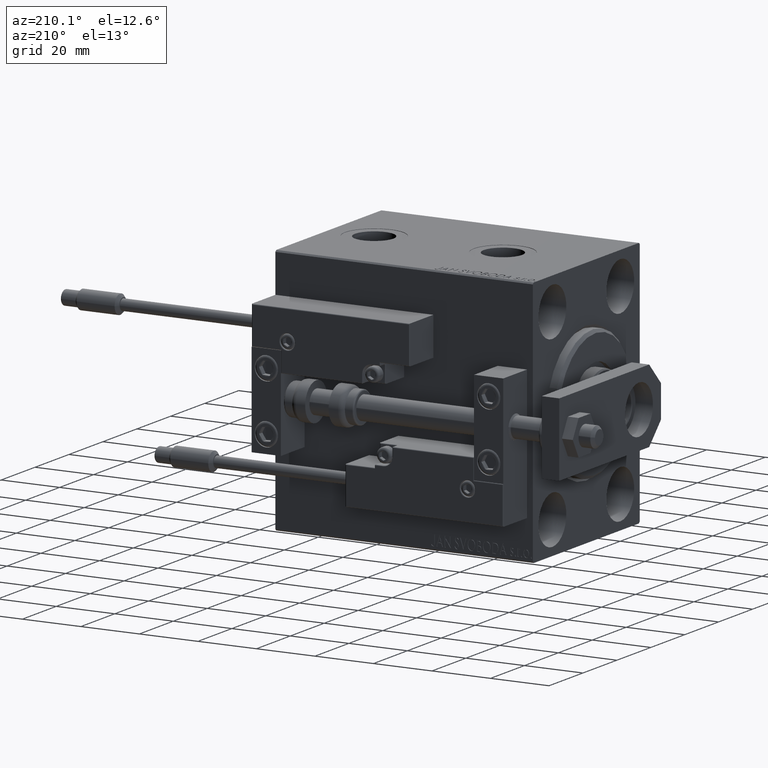
[diagram: clean part render]
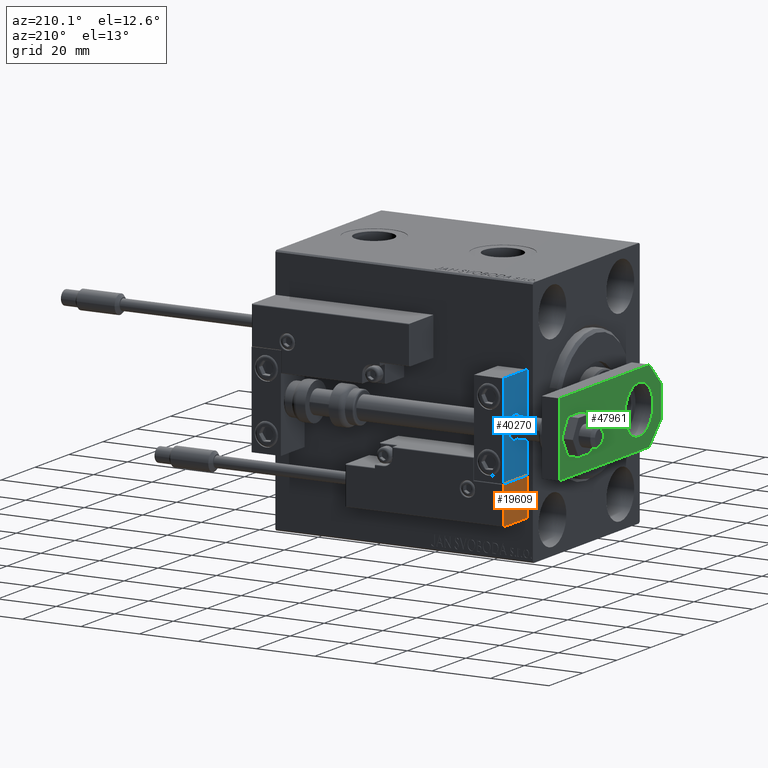
[diagram: same view with three faces highlighted in distinct colors, each labeled with its STEP entity id]
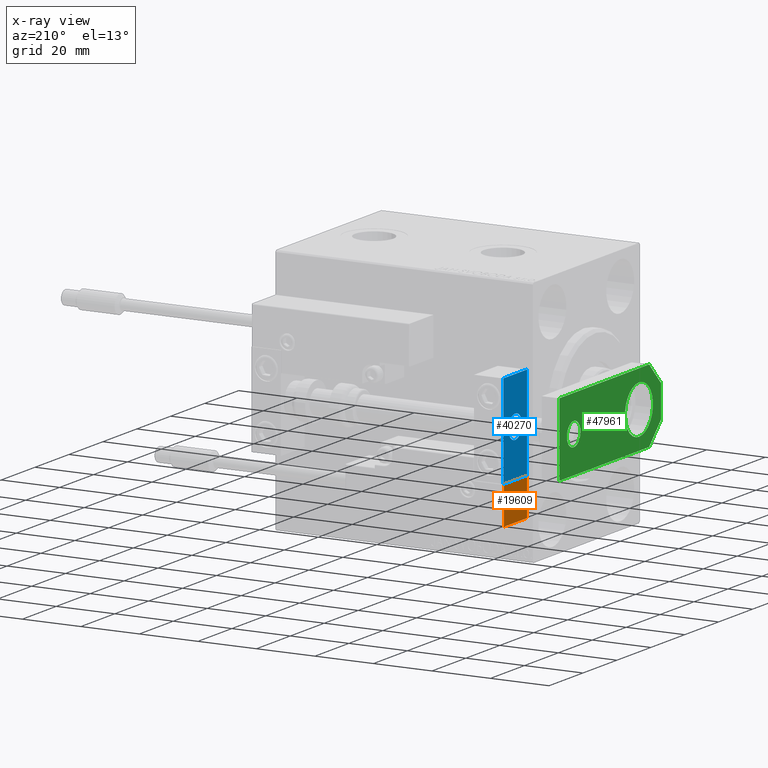
[diagram: x-ray of the same camera — body ghosted, the three highlighted faces saturated]
A machine part, auxiliary view with three faces highlighted in distinct colors.
The next image is the same camera in x-ray (body ghosted, the three faces saturated) — at least one of them is partly hidden behind the body in this view.
Their STEP definitions:

[orange] entity #19609 — the highlighted planar face has unit normal (1, 0, -0).
#1302 = CARTESIAN_POINT ( 'NONE',  ( -26.99999999999993605, 20.00000000000002132, 14.00000000000000000 ) ) ;
#3211 = LINE ( 'NONE', #23182, #13010 ) ;
#7393 = FACE_OUTER_BOUND ( 'NONE', #45682, .T. ) ;
#8990 = DIRECTION ( 'NONE',  ( -0.000000000000000000, -0.000000000000000000, -1.000000000000000000 ) ) ;
#9459 = ORIENTED_EDGE ( 'NONE', *, *, #26182, .T. ) ;
#9603 = ORIENTED_EDGE ( 'NONE', *, *, #37229, .T. ) ;
#10831 = DIRECTION ( 'NONE',  ( -8.006416042969869188E-16, -1.000000000000000000, 0.000000000000000000 ) ) ;
#12711 = VECTOR ( 'NONE', #49258, 1000.000000000000000 ) ;
#13010 = VECTOR ( 'NONE', #18581, 1000.000000000000000 ) ;
#13231 = VERTEX_POINT ( 'NONE', #31777 ) ;
#14517 = CARTESIAN_POINT ( 'NONE',  ( -26.99999999999994671, 7.000000000000005329, 0.000000000000000000 ) ) ;
#15358 = DIRECTION ( 'NONE',  ( 1.000000000000000000, -8.006416042969869188E-16, 0.000000000000000000 ) ) ;
#17249 = VECTOR ( 'NONE', #10831, 1000.000000000000000 ) ;
#18397 = VERTEX_POINT ( 'NONE', #43501 ) ;
#18581 = DIRECTION ( 'NONE',  ( -0.000000000000000000, -0.000000000000000000, -1.000000000000000000 ) ) ;
#19609 = ADVANCED_FACE ( 'NONE', ( #7393 ), #47050, .F. ) ;
#21178 = VERTEX_POINT ( 'NONE', #14517 ) ;
#23182 = CARTESIAN_POINT ( 'NONE',  ( -26.99999999999994671, 7.000000000000005329, 14.00000000000000000 ) ) ;
#26182 = EDGE_CURVE ( 'NONE', #40487, #21178, #37452, .T. ) ;
#26479 = CARTESIAN_POINT ( 'NONE',  ( -26.99999999999993605, 20.00000000000002132, 0.000000000000000000 ) ) ;
#29352 = LINE ( 'NONE', #49023, #12711 ) ;
#29524 = CARTESIAN_POINT ( 'NONE',  ( -26.99999999999993605, 20.00000000000002132, 0.000000000000000000 ) ) ;
#31211 = CARTESIAN_POINT ( 'NONE',  ( -26.99999999999993605, 20.00000000000002132, 14.00000000000000000 ) ) ;
#31441 = ORIENTED_EDGE ( 'NONE', *, *, #37616, .T. ) ;
#31777 = CARTESIAN_POINT ( 'NONE',  ( -26.99999999999994671, 7.000000000000005329, 13.70000000000000107 ) ) ;
#34092 = AXIS2_PLACEMENT_3D ( 'NONE', #31211, #15358, #35299 ) ;
#35299 = DIRECTION ( 'NONE',  ( 8.006416042969869188E-16, 1.000000000000000000, 0.000000000000000000 ) ) ;
#37229 = EDGE_CURVE ( 'NONE', #13231, #18397, #29352, .T. ) ;
#37243 = VECTOR ( 'NONE', #8990, 1000.000000000000000 ) ;
#37400 = ORIENTED_EDGE ( 'NONE', *, *, #48827, .F. ) ;
#37452 = LINE ( 'NONE', #29524, #17249 ) ;
#37616 = EDGE_CURVE ( 'NONE', #18397, #40487, #44030, .T. ) ;
#40487 = VERTEX_POINT ( 'NONE', #26479 ) ;
#43501 = CARTESIAN_POINT ( 'NONE',  ( -26.99999999999993605, 20.00000000000002132, 13.70000000000000107 ) ) ;
#44030 = LINE ( 'NONE', #1302, #37243 ) ;
#45682 = EDGE_LOOP ( 'NONE', ( #37400, #9603, #31441, #9459 ) ) ;
#47050 = PLANE ( 'NONE',  #34092 ) ;
#48827 = EDGE_CURVE ( 'NONE', #13231, #21178, #3211, .T. ) ;
#49023 = CARTESIAN_POINT ( 'NONE',  ( -26.99999999999993605, 20.00000000000002132, 13.70000000000000107 ) ) ;
#49258 = DIRECTION ( 'NONE',  ( 8.006416042969869188E-16, 1.000000000000000000, -0.000000000000000000 ) ) ;

[blue] entity #40270 — the highlighted planar face has unit normal (1, 0, -0).
#158 = CARTESIAN_POINT ( 'NONE',  ( 10.00000000000000000, 0.000000000000000000, 0.000000000000000000 ) ) ;
#1959 = CARTESIAN_POINT ( 'NONE',  ( 10.00000000000000000, 7.000000000000000000, 15.99999999999999289 ) ) ;
#2762 = DIRECTION ( 'NONE',  ( 0.000000000000000000, -1.000000000000000000, 0.000000000000000000 ) ) ;
#2831 = EDGE_CURVE ( 'NONE', #28261, #8644, #37029, .T. ) ;
#3406 = DIRECTION ( 'NONE',  ( -1.000000000000000000, 0.000000000000000000, 0.000000000000000000 ) ) ;
#4254 = FACE_OUTER_BOUND ( 'NONE', #25747, .T. ) ;
#4641 = VECTOR ( 'NONE', #2762, 1000.000000000000000 ) ;
#6920 = CARTESIAN_POINT ( 'NONE',  ( 10.00000000000000000, -7.000000000000000000, 15.99999999999999289 ) ) ;
#8038 = EDGE_CURVE ( 'NONE', #8644, #28261, #15850, .T. ) ;
#8600 = PLANE ( 'NONE',  #34761 ) ;
#8644 = VERTEX_POINT ( 'NONE', #31277 ) ;
#10763 = EDGE_CURVE ( 'NONE', #12622, #36888, #14363, .T. ) ;
#10966 = CARTESIAN_POINT ( 'NONE',  ( 10.00000000000000000, 7.000000000000000000, -16.00000000000000711 ) ) ;
#11262 = CARTESIAN_POINT ( 'NONE',  ( 10.00000000000000000, 7.000000000000000000, 15.99999999999999289 ) ) ;
#12455 = FACE_BOUND ( 'NONE', #31809, .T. ) ;
#12622 = VERTEX_POINT ( 'NONE', #11262 ) ;
#14363 = LINE ( 'NONE', #33050, #32277 ) ;
#14965 = AXIS2_PLACEMENT_3D ( 'NONE', #47056, #35058, #15861 ) ;
#15199 = DIRECTION ( 'NONE',  ( 0.000000000000000000, 0.000000000000000000, 1.000000000000000000 ) ) ;
#15850 = CIRCLE ( 'NONE', #17446, 4.000000000000000000 ) ;
#15861 = DIRECTION ( 'NONE',  ( 0.000000000000000000, 0.000000000000000000, 1.000000000000000000 ) ) ;
#17446 = AXIS2_PLACEMENT_3D ( 'NONE', #29789, #3406, #15199 ) ;
#19875 = DIRECTION ( 'NONE',  ( -0.000000000000000000, 0.000000000000000000, 1.000000000000000000 ) ) ;
#20005 = EDGE_CURVE ( 'NONE', #36888, #41069, #42428, .T. ) ;
#22053 = CARTESIAN_POINT ( 'NONE',  ( 10.00000000000000000, 0.000000000000000000, 4.000000000000000000 ) ) ;
#22734 = EDGE_CURVE ( 'NONE', #48775, #41069, #29978, .T. ) ;
#22928 = CARTESIAN_POINT ( 'NONE',  ( 10.00000000000000000, -7.000000000000000000, 15.99999999999999289 ) ) ;
#25747 = EDGE_LOOP ( 'NONE', ( #44812, #30588, #37585, #40104 ) ) ;
#27178 = VECTOR ( 'NONE', #48045, 1000.000000000000000 ) ;
#28261 = VERTEX_POINT ( 'NONE', #22053 ) ;
#29789 = CARTESIAN_POINT ( 'NONE',  ( 10.00000000000000000, 0.000000000000000000, 0.000000000000000000 ) ) ;
#29944 = EDGE_CURVE ( 'NONE', #12622, #48775, #43683, .T. ) ;
#29978 = LINE ( 'NONE', #6920, #40836 ) ;
#30222 = DIRECTION ( 'NONE',  ( 0.000000000000000000, 0.000000000000000000, -1.000000000000000000 ) ) ;
#30588 = ORIENTED_EDGE ( 'NONE', *, *, #20005, .F. ) ;
#30741 = ORIENTED_EDGE ( 'NONE', *, *, #2831, .T. ) ;
#31277 = CARTESIAN_POINT ( 'NONE',  ( 10.00000000000000000, 4.898587196589412829E-16, -4.000000000000000000 ) ) ;
#31809 = EDGE_LOOP ( 'NONE', ( #30741, #35207 ) ) ;
#32277 = VECTOR ( 'NONE', #38398, 1000.000000000000000 ) ;
#33050 = CARTESIAN_POINT ( 'NONE',  ( 10.00000000000000000, 7.000000000000000000, 15.99999999999999289 ) ) ;
#34761 = AXIS2_PLACEMENT_3D ( 'NONE', #158, #42632, #19875 ) ;
#35058 = DIRECTION ( 'NONE',  ( -1.000000000000000000, 0.000000000000000000, 0.000000000000000000 ) ) ;
#35207 = ORIENTED_EDGE ( 'NONE', *, *, #8038, .T. ) ;
#36888 = VERTEX_POINT ( 'NONE', #44486 ) ;
#37029 = CIRCLE ( 'NONE', #14965, 4.000000000000000000 ) ;
#37585 = ORIENTED_EDGE ( 'NONE', *, *, #10763, .F. ) ;
#38398 = DIRECTION ( 'NONE',  ( 0.000000000000000000, 0.000000000000000000, -1.000000000000000000 ) ) ;
#40104 = ORIENTED_EDGE ( 'NONE', *, *, #29944, .T. ) ;
#40270 = ADVANCED_FACE ( 'NONE', ( #12455, #4254 ), #8600, .F. ) ;
#40836 = VECTOR ( 'NONE', #30222, 1000.000000000000000 ) ;
#41069 = VERTEX_POINT ( 'NONE', #46697 ) ;
#42428 = LINE ( 'NONE', #10966, #4641 ) ;
#42632 = DIRECTION ( 'NONE',  ( -1.000000000000000000, 0.000000000000000000, -0.000000000000000000 ) ) ;
#43683 = LINE ( 'NONE', #1959, #27178 ) ;
#44486 = CARTESIAN_POINT ( 'NONE',  ( 10.00000000000000000, 7.000000000000000000, -16.00000000000000711 ) ) ;
#44812 = ORIENTED_EDGE ( 'NONE', *, *, #22734, .T. ) ;
#46697 = CARTESIAN_POINT ( 'NONE',  ( 10.00000000000000000, -7.000000000000000000, -16.00000000000000711 ) ) ;
#47056 = CARTESIAN_POINT ( 'NONE',  ( 10.00000000000000000, 0.000000000000000000, 0.000000000000000000 ) ) ;
#48045 = DIRECTION ( 'NONE',  ( 0.000000000000000000, -1.000000000000000000, 0.000000000000000000 ) ) ;
#48775 = VERTEX_POINT ( 'NONE', #22928 ) ;

[green] entity #47961 — the highlighted planar face has unit normal (-1, 0, 0).
#744 = VERTEX_POINT ( 'NONE', #3898 ) ;
#1480 = VECTOR ( 'NONE', #24853, 1000.000000000000000 ) ;
#1987 = LINE ( 'NONE', #9688, #30831 ) ;
#2455 = DIRECTION ( 'NONE',  ( 0.7071067811865465735, -0.7071067811865485719, 0.000000000000000000 ) ) ;
#2580 = CARTESIAN_POINT ( 'NONE',  ( -8.250000000000000000, 12.99999999999999822, 6.000000000000000000 ) ) ;
#3898 = CARTESIAN_POINT ( 'NONE',  ( -12.50000000000000355, 7.000000000000013323, 6.000000000000000000 ) ) ;
#3976 = LINE ( 'NONE', #19835, #41321 ) ;
#4072 = AXIS2_PLACEMENT_3D ( 'NONE', #39141, #31229, #35314 ) ;
#4868 = CIRCLE ( 'NONE', #4072, 8.250000000000000000 ) ;
#4980 = CARTESIAN_POINT ( 'NONE',  ( 4.000000000000000888, 51.50000000000000000, 6.000000000000000000 ) ) ;
#5394 = CIRCLE ( 'NONE', #11945, 8.250000000000000000 ) ;
#9688 = CARTESIAN_POINT ( 'NONE',  ( 12.50000000000000355, 60.00000000000000000, 6.000000000000000000 ) ) ;
#10123 = CARTESIAN_POINT ( 'NONE',  ( 0.000000000000000000, 0.000000000000000000, 6.000000000000000000 ) ) ;
#10242 = AXIS2_PLACEMENT_3D ( 'NONE', #49010, #17562, #12983 ) ;
#10322 = ORIENTED_EDGE ( 'NONE', *, *, #50102, .F. ) ;
#10347 = ORIENTED_EDGE ( 'NONE', *, *, #19628, .T. ) ;
#10382 = DIRECTION ( 'NONE',  ( -0.000000000000000000, 0.000000000000000000, 1.000000000000000000 ) ) ;
#10589 = ORIENTED_EDGE ( 'NONE', *, *, #37965, .T. ) ;
#10631 = DIRECTION ( 'NONE',  ( 1.000000000000000000, 0.000000000000000000, 0.000000000000000000 ) ) ;
#11057 = CIRCLE ( 'NONE', #10242, 4.000000000000000888 ) ;
#11233 = CARTESIAN_POINT ( 'NONE',  ( -1.432611055310774642E-16, 51.50000000000000000, 6.000000000000000000 ) ) ;
#11347 = AXIS2_PLACEMENT_3D ( 'NONE', #10123, #10382, #10631 ) ;
#11427 = LINE ( 'NONE', #15268, #18555 ) ;
#11732 = DIRECTION ( 'NONE',  ( 1.000000000000000000, 0.000000000000000000, 0.000000000000000000 ) ) ;
#11945 = AXIS2_PLACEMENT_3D ( 'NONE', #22862, #40735, #44056 ) ;
#12066 = LINE ( 'NONE', #16159, #1480 ) ;
#12908 = CARTESIAN_POINT ( 'NONE',  ( -12.49999999999999822, 60.00000000000000000, 6.000000000000000000 ) ) ;
#12927 = ORIENTED_EDGE ( 'NONE', *, *, #44666, .T. ) ;
#12983 = DIRECTION ( 'NONE',  ( 1.000000000000000000, 0.000000000000000000, 0.000000000000000000 ) ) ;
#14233 = EDGE_CURVE ( 'NONE', #26161, #36384, #28311, .T. ) ;
#14487 = ORIENTED_EDGE ( 'NONE', *, *, #21530, .T. ) ;
#15268 = CARTESIAN_POINT ( 'NONE',  ( -2.750000000000013767, -2.750000000000005773, 6.000000000000000000 ) ) ;
#15391 = CARTESIAN_POINT ( 'NONE',  ( 2.749999999999980016, -2.749999999999988010, 6.000000000000000000 ) ) ;
#16159 = CARTESIAN_POINT ( 'NONE',  ( -12.49999999999999822, 60.00000000000000000, 6.000000000000000000 ) ) ;
#16400 = EDGE_LOOP ( 'NONE', ( #49464, #10322 ) ) ;
#16641 = DIRECTION ( 'NONE',  ( 0.7071067811865486830, 0.7071067811865464625, -0.000000000000000000 ) ) ;
#16757 = DIRECTION ( 'NONE',  ( 1.000000000000000000, 0.000000000000000000, 0.000000000000000000 ) ) ;
#16771 = VERTEX_POINT ( 'NONE', #22641 ) ;
#17562 = DIRECTION ( 'NONE',  ( 0.000000000000000000, 0.000000000000000000, 1.000000000000000000 ) ) ;
#17618 = DIRECTION ( 'NONE',  ( -1.000000000000000000, 0.000000000000000000, 0.000000000000000000 ) ) ;
#17667 = VERTEX_POINT ( 'NONE', #36799 ) ;
#18555 = VECTOR ( 'NONE', #2455, 1000.000000000000000 ) ;
#18566 = FACE_OUTER_BOUND ( 'NONE', #26126, .T. ) ;
#19220 = LINE ( 'NONE', #15391, #47862 ) ;
#19628 = EDGE_CURVE ( 'NONE', #744, #16771, #11427, .T. ) ;
#19777 = EDGE_CURVE ( 'NONE', #17667, #25015, #41612, .T. ) ;
#19835 = CARTESIAN_POINT ( 'NONE',  ( -12.50000000000000355, 4.814824860968089633E-32, 6.000000000000000000 ) ) ;
#21530 = EDGE_CURVE ( 'NONE', #35481, #744, #12066, .T. ) ;
#21907 = PLANE ( 'NONE',  #11347 ) ;
#22641 = CARTESIAN_POINT ( 'NONE',  ( -5.500000000000010658, 4.814824860968089633E-32, 6.000000000000000000 ) ) ;
#22862 = CARTESIAN_POINT ( 'NONE',  ( -9.629649721936179265E-32, 12.99999999999999822, 6.000000000000000000 ) ) ;
#23740 = CARTESIAN_POINT ( 'NONE',  ( -4.000000000000000888, 51.50000000000000000, 6.000000000000000000 ) ) ;
#24853 = DIRECTION ( 'NONE',  ( -8.673617379884035472E-17, -1.000000000000000000, 0.000000000000000000 ) ) ;
#25015 = VERTEX_POINT ( 'NONE', #46528 ) ;
#25882 = ORIENTED_EDGE ( 'NONE', *, *, #36475, .F. ) ;
#26126 = EDGE_LOOP ( 'NONE', ( #14487, #10347, #46642, #10589, #40230, #12927 ) ) ;
#26161 = VERTEX_POINT ( 'NONE', #4980 ) ;
#26514 = CARTESIAN_POINT ( 'NONE',  ( 8.250000000000000000, 13.00000000000000000, 6.000000000000000000 ) ) ;
#27608 = DIRECTION ( 'NONE',  ( 0.000000000000000000, 0.000000000000000000, 1.000000000000000000 ) ) ;
#28311 = CIRCLE ( 'NONE', #47886, 4.000000000000000888 ) ;
#30007 = VECTOR ( 'NONE', #30616, 1000.000000000000000 ) ;
#30616 = DIRECTION ( 'NONE',  ( 0.000000000000000000, 1.000000000000000000, 0.000000000000000000 ) ) ;
#30831 = VECTOR ( 'NONE', #17618, 1000.000000000000000 ) ;
#31229 = DIRECTION ( 'NONE',  ( 0.000000000000000000, 0.000000000000000000, 1.000000000000000000 ) ) ;
#34433 = EDGE_LOOP ( 'NONE', ( #25882, #50435 ) ) ;
#34659 = CARTESIAN_POINT ( 'NONE',  ( 5.499999999999976907, 4.814824860968089633E-32, 6.000000000000000000 ) ) ;
#35314 = DIRECTION ( 'NONE',  ( 1.000000000000000000, 0.000000000000000000, 0.000000000000000000 ) ) ;
#35481 = VERTEX_POINT ( 'NONE', #12908 ) ;
#36384 = VERTEX_POINT ( 'NONE', #23740 ) ;
#36475 = EDGE_CURVE ( 'NONE', #36384, #26161, #11057, .T. ) ;
#36799 = CARTESIAN_POINT ( 'NONE',  ( 12.50000000000000355, 7.000000000000006217, 6.000000000000000000 ) ) ;
#37433 = EDGE_CURVE ( 'NONE', #16771, #44066, #3976, .T. ) ;
#37965 = EDGE_CURVE ( 'NONE', #44066, #17667, #19220, .T. ) ;
#39141 = CARTESIAN_POINT ( 'NONE',  ( -9.629649721936179265E-32, 12.99999999999999822, 6.000000000000000000 ) ) ;
#40230 = ORIENTED_EDGE ( 'NONE', *, *, #19777, .T. ) ;
#40735 = DIRECTION ( 'NONE',  ( 0.000000000000000000, 0.000000000000000000, 1.000000000000000000 ) ) ;
#41321 = VECTOR ( 'NONE', #16757, 1000.000000000000000 ) ;
#41471 = EDGE_CURVE ( 'NONE', #43329, #48742, #5394, .T. ) ;
#41612 = LINE ( 'NONE', #45438, #30007 ) ;
#42087 = FACE_BOUND ( 'NONE', #16400, .T. ) ;
#43329 = VERTEX_POINT ( 'NONE', #2580 ) ;
#44056 = DIRECTION ( 'NONE',  ( 1.000000000000000000, 0.000000000000000000, 0.000000000000000000 ) ) ;
#44066 = VERTEX_POINT ( 'NONE', #34659 ) ;
#44666 = EDGE_CURVE ( 'NONE', #25015, #35481, #1987, .T. ) ;
#45438 = CARTESIAN_POINT ( 'NONE',  ( 12.50000000000000355, 4.814824860968089633E-32, 6.000000000000000000 ) ) ;
#46528 = CARTESIAN_POINT ( 'NONE',  ( 12.50000000000000355, 60.00000000000000000, 6.000000000000000000 ) ) ;
#46642 = ORIENTED_EDGE ( 'NONE', *, *, #37433, .T. ) ;
#47862 = VECTOR ( 'NONE', #16641, 999.9999999999998863 ) ;
#47886 = AXIS2_PLACEMENT_3D ( 'NONE', #11233, #27608, #11732 ) ;
#47961 = ADVANCED_FACE ( 'NONE', ( #50022, #18566, #42087 ), #21907, .T. ) ;
#48742 = VERTEX_POINT ( 'NONE', #26514 ) ;
#49010 = CARTESIAN_POINT ( 'NONE',  ( -1.432611055310774642E-16, 51.50000000000000000, 6.000000000000000000 ) ) ;
#49464 = ORIENTED_EDGE ( 'NONE', *, *, #41471, .F. ) ;
#50022 = FACE_BOUND ( 'NONE', #34433, .T. ) ;
#50102 = EDGE_CURVE ( 'NONE', #48742, #43329, #4868, .T. ) ;
#50435 = ORIENTED_EDGE ( 'NONE', *, *, #14233, .F. ) ;